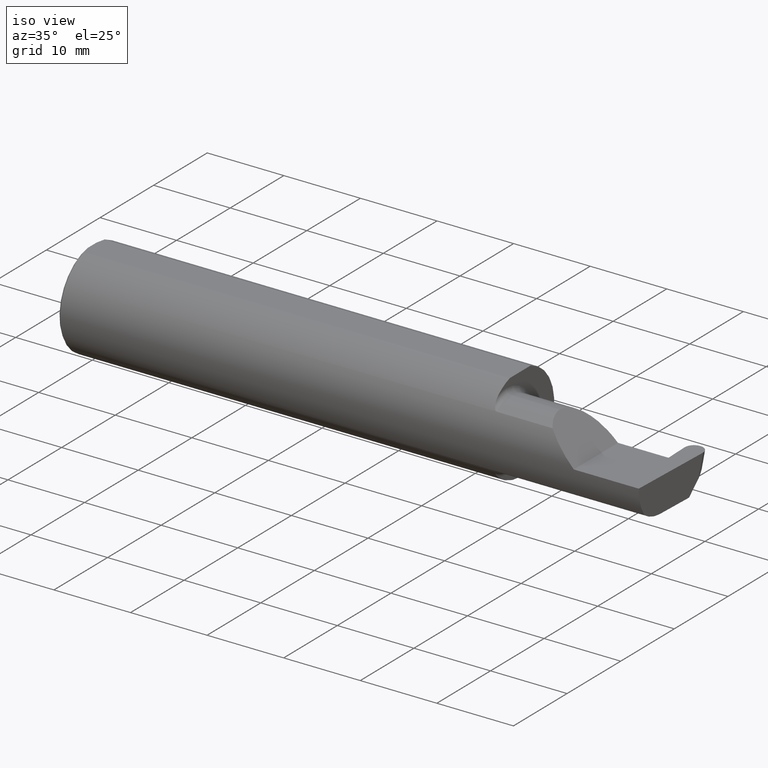
[diagram: clean part render]
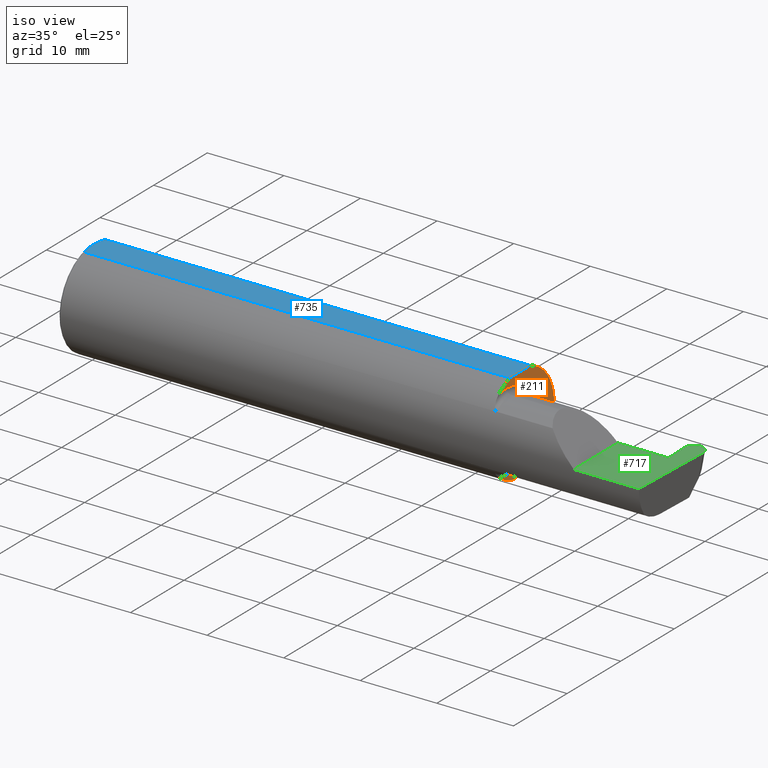
[diagram: same view with three faces highlighted in distinct colors, each labeled with its STEP entity id]
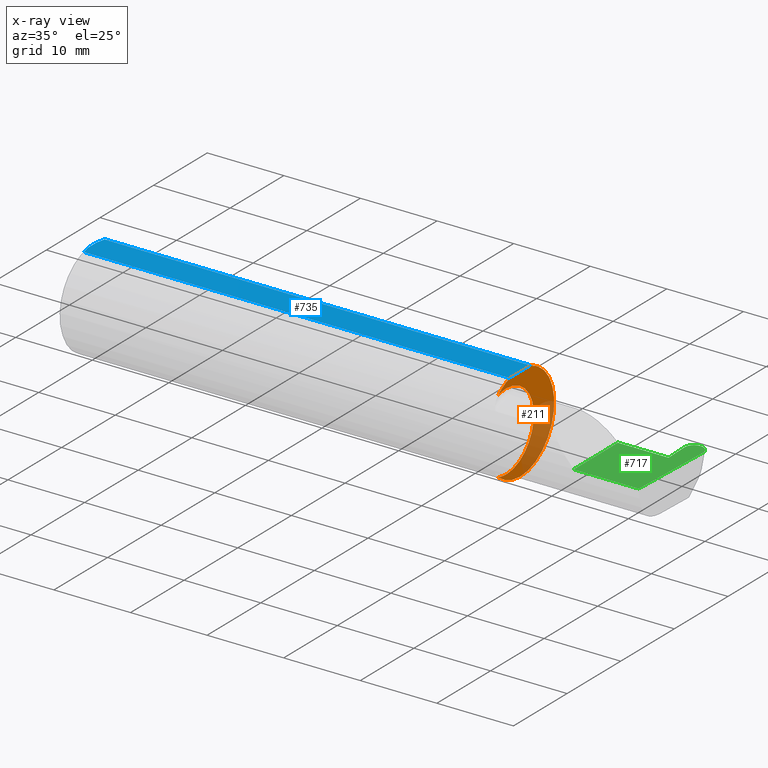
[diagram: x-ray of the same camera — body ghosted, the three highlighted faces saturated]
A machine part, iso view with three faces highlighted in distinct colors.
The next image is the same camera in x-ray (body ghosted, the three faces saturated) — at least one of them is partly hidden behind the body in this view.
Their STEP definitions:

[orange] entity #211 — the highlighted planar face has unit normal (1, 0, 0).
#2 = VERTEX_POINT ( 'NONE', #574 ) ;
#7 = ORIENTED_EDGE ( 'NONE', *, *, #728, .T. ) ;
#8 = EDGE_CURVE ( 'NONE', #2, #382, #404, .T. ) ;
#42 = EDGE_CURVE ( 'NONE', #382, #497, #43, .T. ) ;
#43 = CIRCLE ( 'NONE', #539, 0.2000000000000000389 ) ;
#63 = ORIENTED_EDGE ( 'NONE', *, *, #492, .T. ) ;
#78 = CARTESIAN_POINT ( 'NONE',  ( 2.200000000000000178, -0.1008500000000001062, -0.2000000000000000389 ) ) ;
#82 = CIRCLE ( 'NONE', #555, 0.2000000000000000389 ) ;
#102 = DIRECTION ( 'NONE',  ( 0.000000000000000000, 0.000000000000000000, -1.000000000000000000 ) ) ;
#109 = VERTEX_POINT ( 'NONE', #597 ) ;
#113 = CARTESIAN_POINT ( 'NONE',  ( 2.200000000000000178, 0.2498499999999999055, 0.000000000000000000 ) ) ;
#118 = VERTEX_POINT ( 'NONE', #736 ) ;
#154 = DIRECTION ( 'NONE',  ( -1.000000000000000000, -0.000000000000000000, -0.000000000000000000 ) ) ;
#156 = AXIS2_PLACEMENT_3D ( 'NONE', #753, #431, #238 ) ;
#211 = ADVANCED_FACE ( 'NONE', ( #484 ), #681, .T. ) ;
#217 = CARTESIAN_POINT ( 'NONE',  ( 2.200000000000000178, -0.1616050818046601834, -0.1905487340154982112 ) ) ;
#228 = AXIS2_PLACEMENT_3D ( 'NONE', #113, #569, #102 ) ;
#238 = DIRECTION ( 'NONE',  ( 0.000000000000000000, 0.000000000000000000, -1.000000000000000000 ) ) ;
#239 = EDGE_CURVE ( 'NONE', #497, #118, #254, .T. ) ;
#250 = DIRECTION ( 'NONE',  ( 0.000000000000000000, 0.000000000000000000, 1.000000000000000000 ) ) ;
#254 = CIRCLE ( 'NONE', #318, 0.2498499999999999888 ) ;
#256 = DIRECTION ( 'NONE',  ( -1.000000000000000000, -0.000000000000000000, -0.000000000000000000 ) ) ;
#300 = VECTOR ( 'NONE', #796, 39.37007874015748143 ) ;
#313 = CARTESIAN_POINT ( 'NONE',  ( 2.200000000000000178, 0.000000000000000000, 0.000000000000000000 ) ) ;
#318 = AXIS2_PLACEMENT_3D ( 'NONE', #313, #758, #351 ) ;
#345 = ORIENTED_EDGE ( 'NONE', *, *, #596, .F. ) ;
#348 = DIRECTION ( 'NONE',  ( 0.000000000000000000, 0.000000000000000000, 1.000000000000000000 ) ) ;
#351 = DIRECTION ( 'NONE',  ( 0.000000000000000000, 0.000000000000000000, -1.000000000000000000 ) ) ;
#381 = CARTESIAN_POINT ( 'NONE',  ( 2.200000000000000178, -0.1008500000000001340, 0.000000000000000000 ) ) ;
#382 = VERTEX_POINT ( 'NONE', #78 ) ;
#385 = ORIENTED_EDGE ( 'NONE', *, *, #42, .T. ) ;
#404 = CIRCLE ( 'NONE', #499, 0.2000000000000000389 ) ;
#431 = DIRECTION ( 'NONE',  ( 1.000000000000000000, 0.000000000000000000, 0.000000000000000000 ) ) ;
#484 = FACE_OUTER_BOUND ( 'NONE', #655, .T. ) ;
#489 = CARTESIAN_POINT ( 'NONE',  ( 2.200000000000000178, 0.2498499999999998500, 0.2378499999999998671 ) ) ;
#492 = EDGE_CURVE ( 'NONE', #759, #2, #82, .T. ) ;
#497 = VERTEX_POINT ( 'NONE', #217 ) ;
#499 = AXIS2_PLACEMENT_3D ( 'NONE', #381, #256, #250 ) ;
#509 = DIRECTION ( 'NONE',  ( -1.000000000000000000, -0.000000000000000000, -0.000000000000000000 ) ) ;
#539 = AXIS2_PLACEMENT_3D ( 'NONE', #571, #509, #348 ) ;
#551 = DIRECTION ( 'NONE',  ( 0.000000000000000000, 0.000000000000000000, 1.000000000000000000 ) ) ;
#555 = AXIS2_PLACEMENT_3D ( 'NONE', #683, #154, #551 ) ;
#569 = DIRECTION ( 'NONE',  ( 1.000000000000000000, 0.000000000000000000, 0.000000000000000000 ) ) ;
#571 = CARTESIAN_POINT ( 'NONE',  ( 2.200000000000000178, -0.1008500000000001340, 0.000000000000000000 ) ) ;
#574 = CARTESIAN_POINT ( 'NONE',  ( 2.200000000000000178, -0.1008500000000001201, 0.2000000000000000389 ) ) ;
#596 = EDGE_CURVE ( 'NONE', #109, #118, #734, .T. ) ;
#597 = CARTESIAN_POINT ( 'NONE',  ( 2.200000000000000178, -0.07650098038587527238, 0.2378499999999998671 ) ) ;
#623 = CIRCLE ( 'NONE', #156, 0.2498499999999999888 ) ;
#655 = EDGE_LOOP ( 'NONE', ( #821, #345, #7, #63, #722, #385 ) ) ;
#681 = PLANE ( 'NONE',  #228 ) ;
#683 = CARTESIAN_POINT ( 'NONE',  ( 2.200000000000000178, -0.1008500000000001340, 0.000000000000000000 ) ) ;
#722 = ORIENTED_EDGE ( 'NONE', *, *, #8, .T. ) ;
#723 = CARTESIAN_POINT ( 'NONE',  ( 2.200000000000000178, -0.1616050818046601834, 0.1905487340154982112 ) ) ;
#728 = EDGE_CURVE ( 'NONE', #109, #759, #623, .T. ) ;
#734 = LINE ( 'NONE', #489, #300 ) ;
#736 = CARTESIAN_POINT ( 'NONE',  ( 2.200000000000000178, 0.07650098038587520299, 0.2378499999999998671 ) ) ;
#753 = CARTESIAN_POINT ( 'NONE',  ( 2.200000000000000178, 0.000000000000000000, 0.000000000000000000 ) ) ;
#758 = DIRECTION ( 'NONE',  ( 1.000000000000000000, 0.000000000000000000, 0.000000000000000000 ) ) ;
#759 = VERTEX_POINT ( 'NONE', #723 ) ;
#796 = DIRECTION ( 'NONE',  ( 0.000000000000000000, 1.000000000000000000, 0.000000000000000000 ) ) ;
#821 = ORIENTED_EDGE ( 'NONE', *, *, #239, .T. ) ;

[blue] entity #735 — the highlighted planar face has unit normal (0, 0, 1).
#12 = DIRECTION ( 'NONE',  ( 1.000000000000000000, 0.000000000000000000, 0.000000000000000000 ) ) ;
#16 = VECTOR ( 'NONE', #12, 39.37007874015748143 ) ;
#22 = ORIENTED_EDGE ( 'NONE', *, *, #596, .T. ) ;
#71 = AXIS2_PLACEMENT_3D ( 'NONE', #757, #519, #572 ) ;
#109 = VERTEX_POINT ( 'NONE', #597 ) ;
#118 = VERTEX_POINT ( 'NONE', #736 ) ;
#131 = VECTOR ( 'NONE', #478, 39.37007874015748143 ) ;
#137 = CARTESIAN_POINT ( 'NONE',  ( 0.000000000000000000, 0.03090954545120574992, 0.2378499999999998671 ) ) ;
#150 = CARTESIAN_POINT ( 'NONE',  ( 0.000000000000000000, 0.2498499999999998500, 0.2378499999999998671 ) ) ;
#191 = LINE ( 'NONE', #454, #16 ) ;
#204 = EDGE_CURVE ( 'NONE', #367, #446, #695, .T. ) ;
#208 = EDGE_LOOP ( 'NONE', ( #297, #22, #594, #486, #325, #390 ) ) ;
#222 = LINE ( 'NONE', #295, #131 ) ;
#244 = CARTESIAN_POINT ( 'NONE',  ( 0.009999999999999856226, 0.07650098038587520299, 0.2378499999999998671 ) ) ;
#286 = DIRECTION ( 'NONE',  ( -0.000000000000000000, 1.000000000000000000, -0.000000000000000000 ) ) ;
#295 = CARTESIAN_POINT ( 'NONE',  ( 0.000000000000000000, 0.07650098038587520299, 0.2378499999999998671 ) ) ;
#297 = ORIENTED_EDGE ( 'NONE', *, *, #806, .T. ) ;
#300 = VECTOR ( 'NONE', #796, 39.37007874015748143 ) ;
#325 = ORIENTED_EDGE ( 'NONE', *, *, #570, .F. ) ;
#367 = VERTEX_POINT ( 'NONE', #137 ) ;
#390 = ORIENTED_EDGE ( 'NONE', *, *, #496, .F. ) ;
#398 = VERTEX_POINT ( 'NONE', #641 ) ;
#446 = VERTEX_POINT ( 'NONE', #724 ) ;
#454 = CARTESIAN_POINT ( 'NONE',  ( 0.000000000000000000, -0.07650098038587520299, 0.2378499999999998671 ) ) ;
#466 = VERTEX_POINT ( 'NONE', #546 ) ;
#478 = DIRECTION ( 'NONE',  ( -1.000000000000000000, -0.000000000000000000, -0.000000000000000000 ) ) ;
#486 = ORIENTED_EDGE ( 'NONE', *, *, #204, .F. ) ;
#489 = CARTESIAN_POINT ( 'NONE',  ( 2.200000000000000178, 0.2498499999999998500, 0.2378499999999998671 ) ) ;
#496 = EDGE_CURVE ( 'NONE', #466, #398, #763, .T. ) ;
#498 = PLANE ( 'NONE',  #71 ) ;
#515 = EDGE_CURVE ( 'NONE', #118, #446, #222, .T. ) ;
#519 = DIRECTION ( 'NONE',  ( 0.000000000000000000, 0.000000000000000000, 1.000000000000000000 ) ) ;
#546 = CARTESIAN_POINT ( 'NONE',  ( 0.009999999999999856226, -0.07650098038587520299, 0.2378499999999998671 ) ) ;
#570 = EDGE_CURVE ( 'NONE', #398, #367, #743, .T. ) ;
#572 = DIRECTION ( 'NONE',  ( 1.000000000000000000, 0.000000000000000000, -0.000000000000000000 ) ) ;
#594 = ORIENTED_EDGE ( 'NONE', *, *, #515, .T. ) ;
#596 = EDGE_CURVE ( 'NONE', #109, #118, #734, .T. ) ;
#597 = CARTESIAN_POINT ( 'NONE',  ( 2.200000000000000178, -0.07650098038587527238, 0.2378499999999998671 ) ) ;
#599 = CARTESIAN_POINT ( 'NONE',  ( 0.000000000000000000, -0.03090954545120560767, 0.2378499999999998671 ) ) ;
#605 = CARTESIAN_POINT ( 'NONE',  ( 0.001983148254845701515, -0.04629825796642599717, 0.2378499999999998671 ) ) ;
#641 = CARTESIAN_POINT ( 'NONE',  ( 0.000000000000000000, -0.03090954545120560767, 0.2378499999999998671 ) ) ;
#661 = VECTOR ( 'NONE', #286, 39.37007874015748143 ) ;
#680 = CARTESIAN_POINT ( 'NONE',  ( 0.009999999999999856226, -0.07650098038587520299, 0.2378499999999998671 ) ) ;
#695 = B_SPLINE_CURVE_WITH_KNOTS ( 'NONE', 3,
 ( #699, #705, #819, #244 ),
 .UNSPECIFIED., .F., .F.,
 ( 4, 4 ),
 ( 0.01593449416844770414, 0.01712021724825603733 ),
 .UNSPECIFIED. ) ;
#699 = CARTESIAN_POINT ( 'NONE',  ( 0.000000000000000000, 0.03090954545120574992, 0.2378499999999998671 ) ) ;
#705 = CARTESIAN_POINT ( 'NONE',  ( 0.002005502345409059580, 0.04647171987093979412, 0.2378499999999998671 ) ) ;
#724 = CARTESIAN_POINT ( 'NONE',  ( 0.009999999999999856226, 0.07650098038587520299, 0.2378499999999998671 ) ) ;
#734 = LINE ( 'NONE', #489, #300 ) ;
#735 = ADVANCED_FACE ( 'NONE', ( #818 ), #498, .T. ) ;
#736 = CARTESIAN_POINT ( 'NONE',  ( 2.200000000000000178, 0.07650098038587520299, 0.2378499999999998671 ) ) ;
#743 = LINE ( 'NONE', #150, #661 ) ;
#757 = CARTESIAN_POINT ( 'NONE',  ( 3.501298404146671484, 0.2498499999999998500, 0.2378499999999998671 ) ) ;
#763 = B_SPLINE_CURVE_WITH_KNOTS ( 'NONE', 3,
 ( #680, #805, #605, #599 ),
 .UNSPECIFIED., .F., .F.,
 ( 4, 4 ),
 ( 0.01317593029100230795, 0.01435802289191462008 ),
 .UNSPECIFIED. ) ;
#796 = DIRECTION ( 'NONE',  ( 0.000000000000000000, 1.000000000000000000, 0.000000000000000000 ) ) ;
#805 = CARTESIAN_POINT ( 'NONE',  ( 0.005459900170181723050, -0.06167314502012866823, 0.2378499999999998671 ) ) ;
#806 = EDGE_CURVE ( 'NONE', #466, #109, #191, .T. ) ;
#818 = FACE_OUTER_BOUND ( 'NONE', #208, .T. ) ;
#819 = CARTESIAN_POINT ( 'NONE',  ( 0.005466242398876384675, 0.06169385855649840017, 0.2378499999999998671 ) ) ;

[green] entity #717 — the highlighted planar face has unit normal (-0, 0, -1).
#5 = VECTOR ( 'NONE', #792, 39.37007874015748143 ) ;
#15 = DIRECTION ( 'NONE',  ( 1.000000000000000000, -0.000000000000000000, -0.000000000000000000 ) ) ;
#25 = DIRECTION ( 'NONE',  ( -0.03489949670249360703, -0.9993908270190959842, 0.000000000000000000 ) ) ;
#50 = VERTEX_POINT ( 'NONE', #144 ) ;
#56 = AXIS2_PLACEMENT_3D ( 'NONE', #374, #558, #368 ) ;
#58 = CARTESIAN_POINT ( 'NONE',  ( 2.999923946274115405, 0.1970717818336509553, 0.000000000000000000 ) ) ;
#101 = CARTESIAN_POINT ( 'NONE',  ( 2.984317093749864647, -0.2498499999999999888, 0.000000000000000000 ) ) ;
#104 = CARTESIAN_POINT ( 'NONE',  ( 2.905871548989777509, 0.1984284167760241857, 0.000000000000000000 ) ) ;
#112 = LINE ( 'NONE', #305, #389 ) ;
#121 = DIRECTION ( 'NONE',  ( -0.000000000000000000, 1.000000000000000000, -0.000000000000000000 ) ) ;
#122 = VERTEX_POINT ( 'NONE', #219 ) ;
#127 = CARTESIAN_POINT ( 'NONE',  ( 2.924395885334045708, 0.2471499999999999253, 9.093799426912671490E-18 ) ) ;
#128 = EDGE_CURVE ( 'NONE', #528, #518, #397, .T. ) ;
#139 = ORIENTED_EDGE ( 'NONE', *, *, #776, .F. ) ;
#142 = LINE ( 'NONE', #665, #5 ) ;
#144 = CARTESIAN_POINT ( 'NONE',  ( 2.905918923725884451, 0.1970717818336510108, 0.000000000000000000 ) ) ;
#145 = ORIENTED_EDGE ( 'NONE', *, *, #479, .F. ) ;
#162 = CARTESIAN_POINT ( 'NONE',  ( 2.999923946274115405, 0.1970717818336509553, 0.000000000000000000 ) ) ;
#165 = DIRECTION ( 'NONE',  ( 1.000000000000000000, -0.000000000000000000, -0.000000000000000000 ) ) ;
#168 = VECTOR ( 'NONE', #25, 39.37007874015748143 ) ;
#176 = CARTESIAN_POINT ( 'NONE',  ( 2.981446984665954592, 0.2471500000000002306, 5.045648196544972649E-18 ) ) ;
#186 = VERTEX_POINT ( 'NONE', #565 ) ;
#200 = ORIENTED_EDGE ( 'NONE', *, *, #235, .F. ) ;
#205 = VERTEX_POINT ( 'NONE', #504 ) ;
#213 = DIRECTION ( 'NONE',  ( -0.03489949670249305885, 0.9993908270190959842, -0.000000000000000000 ) ) ;
#219 = CARTESIAN_POINT ( 'NONE',  ( 2.650000000000000355, 0.07414999999999995206, 9.797174393178813824E-17 ) ) ;
#235 = EDGE_CURVE ( 'NONE', #186, #122, #480, .T. ) ;
#248 = CARTESIAN_POINT ( 'NONE',  ( 3.000942059314616550, 0.2262267247321108621, 2.658190119782672195E-18 ) ) ;
#249 = EDGE_CURVE ( 'NONE', #528, #205, #600, .T. ) ;
#260 = ORIENTED_EDGE ( 'NONE', *, *, #625, .F. ) ;
#275 = CARTESIAN_POINT ( 'NONE',  ( 2.899170153812740125, 0.07414999999999995206, 0.000000000000000000 ) ) ;
#291 = LINE ( 'NONE', #104, #677 ) ;
#303 = ORIENTED_EDGE ( 'NONE', *, *, #400, .T. ) ;
#305 = CARTESIAN_POINT ( 'NONE',  ( -0.002039370078740339320, 0.2471499999999999808, 0.000000000000000000 ) ) ;
#322 = LINE ( 'NONE', #640, #338 ) ;
#323 = EDGE_CURVE ( 'NONE', #559, #535, #418, .T. ) ;
#331 = CARTESIAN_POINT ( 'NONE',  ( 2.952578855735824348, 0.2471499999999999808, 0.000000000000000000 ) ) ;
#338 = VECTOR ( 'NONE', #523, 39.37007874015748143 ) ;
#354 = CARTESIAN_POINT ( 'NONE',  ( 2.910211446934811264, 0.07414999999999995206, 0.000000000000000000 ) ) ;
#364 = VECTOR ( 'NONE', #15, 39.37007874015748143 ) ;
#368 = DIRECTION ( 'NONE',  ( -1.000000000000000000, 0.000000000000000000, 1.224646799147351975E-16 ) ) ;
#374 = CARTESIAN_POINT ( 'NONE',  ( 3.000000000000000444, -0.2500000000000000555, 0.000000000000000000 ) ) ;
#389 = VECTOR ( 'NONE', #165, 39.37007874015748143 ) ;
#397 = LINE ( 'NONE', #784, #168 ) ;
#400 = EDGE_CURVE ( 'NONE', #436, #50, #684, .T. ) ;
#418 = LINE ( 'NONE', #708, #364 ) ;
#436 = VERTEX_POINT ( 'NONE', #451 ) ;
#443 = PLANE ( 'NONE',  #56 ) ;
#451 = CARTESIAN_POINT ( 'NONE',  ( 2.952578855735824348, 0.2471499999999999808, 0.000000000000000000 ) ) ;
#462 = EDGE_CURVE ( 'NONE', #535, #50, #291, .T. ) ;
#479 = EDGE_CURVE ( 'NONE', #122, #559, #142, .T. ) ;
#480 = LINE ( 'NONE', #694, #620 ) ;
#504 = CARTESIAN_POINT ( 'NONE',  ( 2.953264014264175064, 0.2471499999999999808, 0.000000000000000000 ) ) ;
#517 = CARTESIAN_POINT ( 'NONE',  ( 2.904900810685382861, 0.2262267247321106678, 1.148125750367493843E-17 ) ) ;
#518 = VERTEX_POINT ( 'NONE', #101 ) ;
#523 = DIRECTION ( 'NONE',  ( -1.000000000000000000, -0.000000000000000000, -0.000000000000000000 ) ) ;
#528 = VERTEX_POINT ( 'NONE', #162 ) ;
#535 = VERTEX_POINT ( 'NONE', #354 ) ;
#558 = DIRECTION ( 'NONE',  ( -1.224646799147351975E-16, 0.000000000000000000, -1.000000000000000000 ) ) ;
#559 = VERTEX_POINT ( 'NONE', #275 ) ;
#565 = CARTESIAN_POINT ( 'NONE',  ( 2.650000000000000355, -0.2498499999999999610, 4.286263797015729199E-17 ) ) ;
#568 = FACE_OUTER_BOUND ( 'NONE', #790, .T. ) ;
#588 = ORIENTED_EDGE ( 'NONE', *, *, #462, .F. ) ;
#600 =( BOUNDED_CURVE ( )  B_SPLINE_CURVE ( 3, ( #58, #248, #176, #744 ),
 .UNSPECIFIED., .F., .F. ) 
 B_SPLINE_CURVE_WITH_KNOTS ( ( 4, 4 ),
 ( 1.637964922114648392, 3.237953570749846577 ),
 .UNSPECIFIED. ) 
 CURVE ( )  GEOMETRIC_REPRESENTATION_ITEM ( )  RATIONAL_B_SPLINE_CURVE ( ( 1.000000000000000000, 0.7978071872141893062, 0.7978071872141893062, 1.000000000000000000 ) ) 
 REPRESENTATION_ITEM ( '' )  );
#620 = VECTOR ( 'NONE', #121, 39.37007874015748143 ) ;
#625 = EDGE_CURVE ( 'NONE', #436, #205, #112, .T. ) ;
#640 = CARTESIAN_POINT ( 'NONE',  ( 4.499279347985562423E-32, -0.2498499999999999610, 3.673940397442054938E-16 ) ) ;
#665 = CARTESIAN_POINT ( 'NONE',  ( 2.200000000000000178, 0.07414999999999995206, 9.797174393178813824E-17 ) ) ;
#668 = ORIENTED_EDGE ( 'NONE', *, *, #128, .F. ) ;
#677 = VECTOR ( 'NONE', #213, 39.37007874015748854 ) ;
#684 =( BOUNDED_CURVE ( )  B_SPLINE_CURVE ( 3, ( #331, #127, #517, #778 ),
 .UNSPECIFIED., .F., .F. ) 
 B_SPLINE_CURVE_WITH_KNOTS ( ( 4, 4 ),
 ( 3.045231736429750757, 4.645220385064936508 ),
 .UNSPECIFIED. ) 
 CURVE ( )  GEOMETRIC_REPRESENTATION_ITEM ( )  RATIONAL_B_SPLINE_CURVE ( ( 1.000000000000000000, 0.7978071872141923038, 0.7978071872141923038, 1.000000000000000000 ) ) 
 REPRESENTATION_ITEM ( '' )  );
#694 = CARTESIAN_POINT ( 'NONE',  ( 2.650000000000000355, -0.2500000000000000555, 4.286263797015729199E-17 ) ) ;
#697 = ORIENTED_EDGE ( 'NONE', *, *, #249, .T. ) ;
#708 = CARTESIAN_POINT ( 'NONE',  ( 2.910211446934811264, 0.07414999999999995206, 0.000000000000000000 ) ) ;
#712 = ORIENTED_EDGE ( 'NONE', *, *, #323, .F. ) ;
#717 = ADVANCED_FACE ( 'NONE', ( #568 ), #443, .F. ) ;
#744 = CARTESIAN_POINT ( 'NONE',  ( 2.953264014264175064, 0.2471499999999999808, 0.000000000000000000 ) ) ;
#776 = EDGE_CURVE ( 'NONE', #518, #186, #322, .T. ) ;
#778 = CARTESIAN_POINT ( 'NONE',  ( 2.905918923725884451, 0.1970717818336510108, 0.000000000000000000 ) ) ;
#784 = CARTESIAN_POINT ( 'NONE',  ( 2.999971321010222347, 0.1984284167760241857, 0.000000000000000000 ) ) ;
#790 = EDGE_LOOP ( 'NONE', ( #260, #303, #588, #712, #145, #200, #139, #668, #697 ) ) ;
#792 = DIRECTION ( 'NONE',  ( 1.000000000000000000, 0.000000000000000000, 0.000000000000000000 ) ) ;